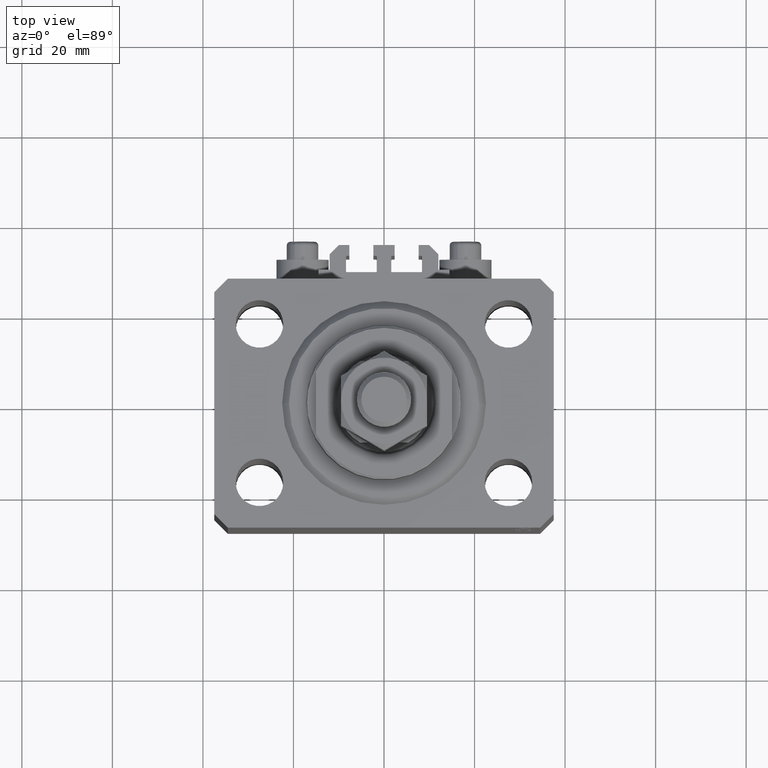
[diagram: clean part render]
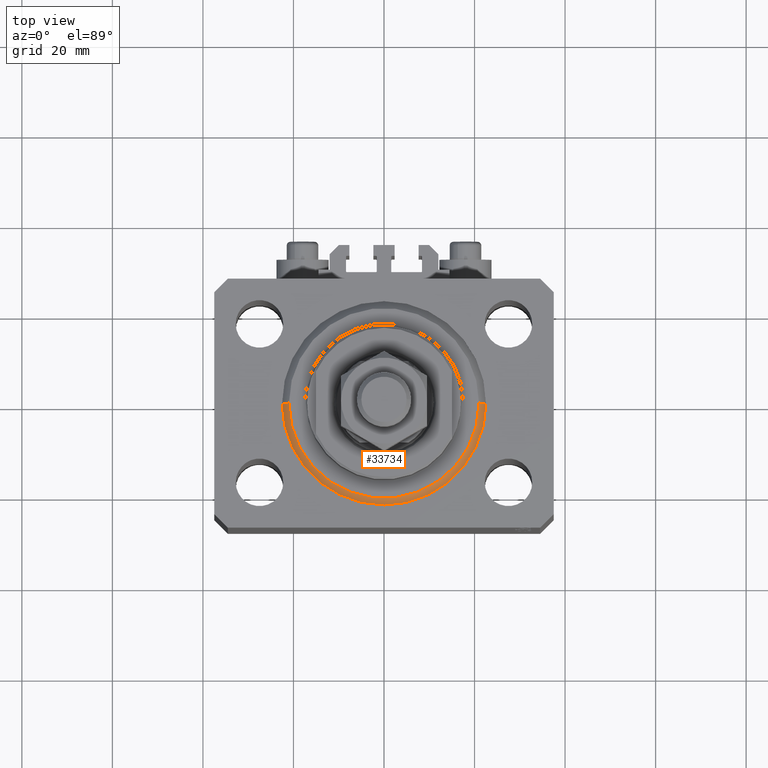
[diagram: same view with one face highlighted and labeled with its STEP entity id]
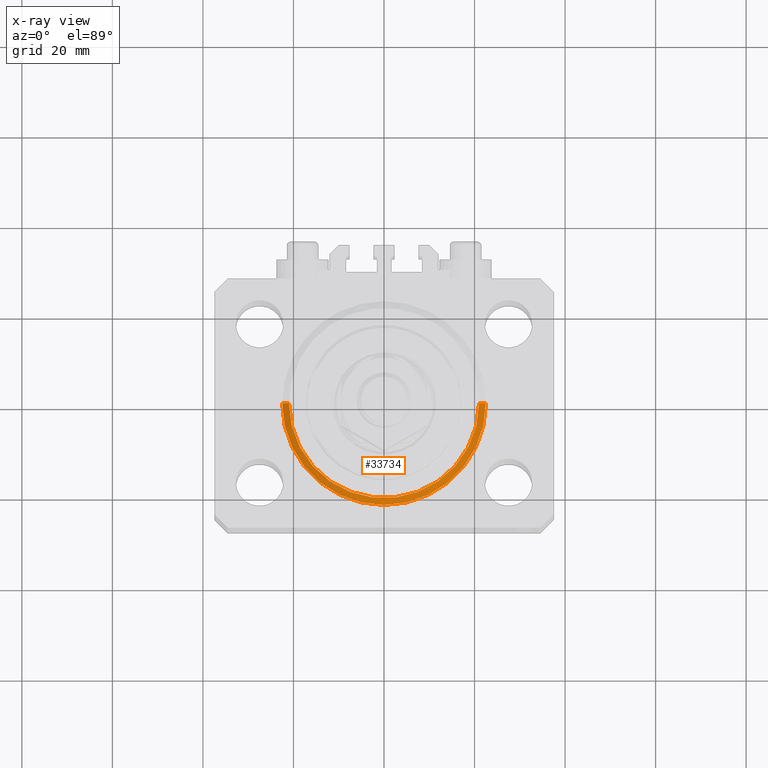
[diagram: x-ray of the same camera — body ghosted, the highlighted face saturated]
A machine part, top view. The second image highlights one B-rep face of the part: STEP entity #33734.
The next image is the same camera in x-ray: the body ghosted, the highlighted face saturated — about 0% of this face is hidden behind the body in this view.
In plain terms, the highlighted conical surface has half-angle 45 deg.
Its self-contained STEP definition (entity closure, byte-faithful):
#86 = CARTESIAN_POINT ( 'NONE',  ( 20.99999999999998934, 0.000000000000000000, 0.000000000000000000 ) ) ;
#450 = CARTESIAN_POINT ( 'NONE',  ( 0.000000000000000000, 0.000000000000000000, 0.000000000000000000 ) ) ;
#758 = CARTESIAN_POINT ( 'NONE',  ( 22.50000000000000355, 2.755455298081545172E-15, 1.500000000000001332 ) ) ;
#3385 = ORIENTED_EDGE ( 'NONE', *, *, #6215, .F. ) ;
#4169 = DIRECTION ( 'NONE',  ( 1.000000000000000000, 0.000000000000000000, 0.000000000000000000 ) ) ;
#4233 = DIRECTION ( 'NONE',  ( -0.000000000000000000, -0.000000000000000000, 1.000000000000000000 ) ) ;
#4484 = FACE_OUTER_BOUND ( 'NONE', #18054, .T. ) ;
#4730 = CARTESIAN_POINT ( 'NONE',  ( 0.000000000000000000, 0.000000000000000000, 1.500000000000001332 ) ) ;
#4797 = LINE ( 'NONE', #45978, #13961 ) ;
#6215 = EDGE_CURVE ( 'NONE', #12186, #33751, #40432, .T. ) ;
#6354 = DIRECTION ( 'NONE',  ( -0.000000000000000000, -0.000000000000000000, 1.000000000000000000 ) ) ;
#10111 = EDGE_CURVE ( 'NONE', #23879, #11350, #25805, .T. ) ;
#10314 = CARTESIAN_POINT ( 'NONE',  ( 0.000000000000000000, 0.000000000000000000, 1.500000000000001332 ) ) ;
#10806 = EDGE_CURVE ( 'NONE', #11350, #12186, #4797, .T. ) ;
#10913 = CONICAL_SURFACE ( 'NONE', #18813, 22.50000000000000355, 0.7853981633974517207 ) ;
#11350 = VERTEX_POINT ( 'NONE', #21691 ) ;
#12186 = VERTEX_POINT ( 'NONE', #28730 ) ;
#13961 = VECTOR ( 'NONE', #19924, 1000.000000000000114 ) ;
#14002 = EDGE_CURVE ( 'NONE', #23879, #33751, #16823, .T. ) ;
#14081 = CARTESIAN_POINT ( 'NONE',  ( 22.50000000000000355, 0.000000000000000000, 1.500000000000001332 ) ) ;
#16823 = LINE ( 'NONE', #14081, #27304 ) ;
#18054 = EDGE_LOOP ( 'NONE', ( #33634, #22198, #22779, #3385 ) ) ;
#18813 = AXIS2_PLACEMENT_3D ( 'NONE', #4730, #4233, #23830 ) ;
#19857 = AXIS2_PLACEMENT_3D ( 'NONE', #10314, #6354, #29433 ) ;
#19924 = DIRECTION ( 'NONE',  ( -0.7071067811865500152, 8.659560562354963673E-17, 0.7071067811865451302 ) ) ;
#21691 = CARTESIAN_POINT ( 'NONE',  ( -20.99999999999998934, 2.663606788145492628E-15, 0.000000000000000000 ) ) ;
#22198 = ORIENTED_EDGE ( 'NONE', *, *, #10111, .F. ) ;
#22779 = ORIENTED_EDGE ( 'NONE', *, *, #14002, .T. ) ;
#23830 = DIRECTION ( 'NONE',  ( 1.000000000000000000, 0.000000000000000000, 0.000000000000000000 ) ) ;
#23879 = VERTEX_POINT ( 'NONE', #86 ) ;
#25805 = CIRCLE ( 'NONE', #36886, 20.99999999999998934 ) ;
#27304 = VECTOR ( 'NONE', #35927, 1000.000000000000114 ) ;
#28730 = CARTESIAN_POINT ( 'NONE',  ( -22.50000000000000355, 0.000000000000000000, 1.500000000000001332 ) ) ;
#29433 = DIRECTION ( 'NONE',  ( 1.000000000000000000, 0.000000000000000000, 0.000000000000000000 ) ) ;
#33634 = ORIENTED_EDGE ( 'NONE', *, *, #10806, .F. ) ;
#33734 = ADVANCED_FACE ( 'NONE', ( #4484 ), #10913, .T. ) ;
#33751 = VERTEX_POINT ( 'NONE', #758 ) ;
#35927 = DIRECTION ( 'NONE',  ( 0.7071067811865500152, 0.000000000000000000, 0.7071067811865451302 ) ) ;
#36886 = AXIS2_PLACEMENT_3D ( 'NONE', #450, #41393, #4169 ) ;
#40432 = CIRCLE ( 'NONE', #19857, 22.50000000000000355 ) ;
#41393 = DIRECTION ( 'NONE',  ( -0.000000000000000000, -0.000000000000000000, -1.000000000000000000 ) ) ;
#45978 = CARTESIAN_POINT ( 'NONE',  ( -22.50000000000000355, 2.755455298081545172E-15, 1.500000000000001332 ) ) ;